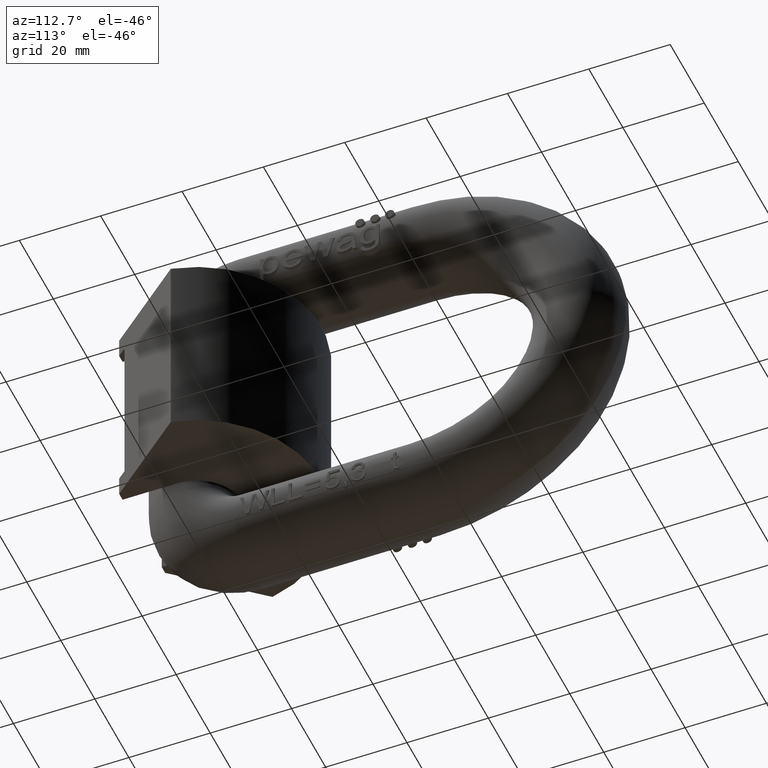
[diagram: clean part render]
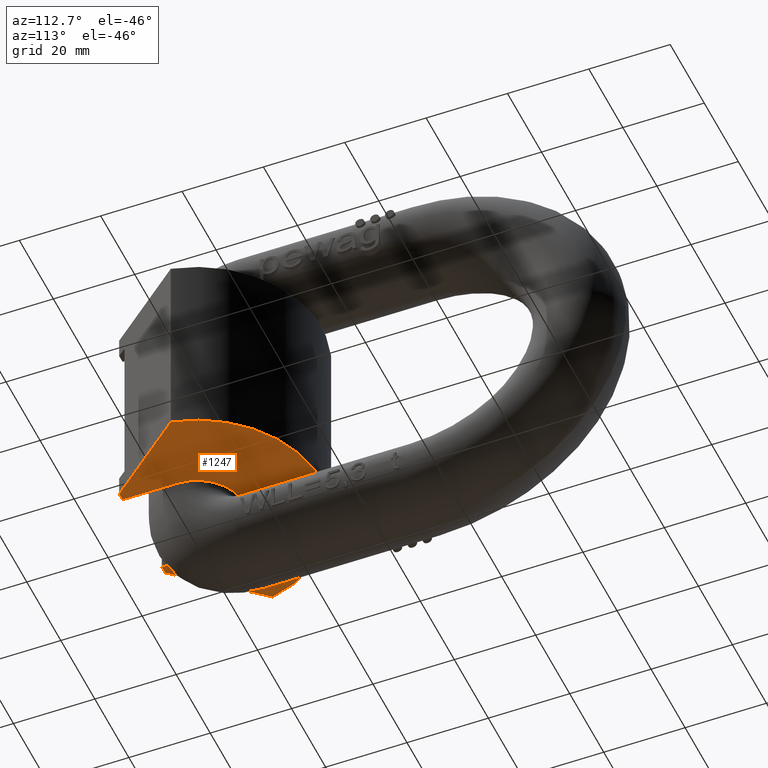
[diagram: same view with one face highlighted and labeled with its STEP entity id]
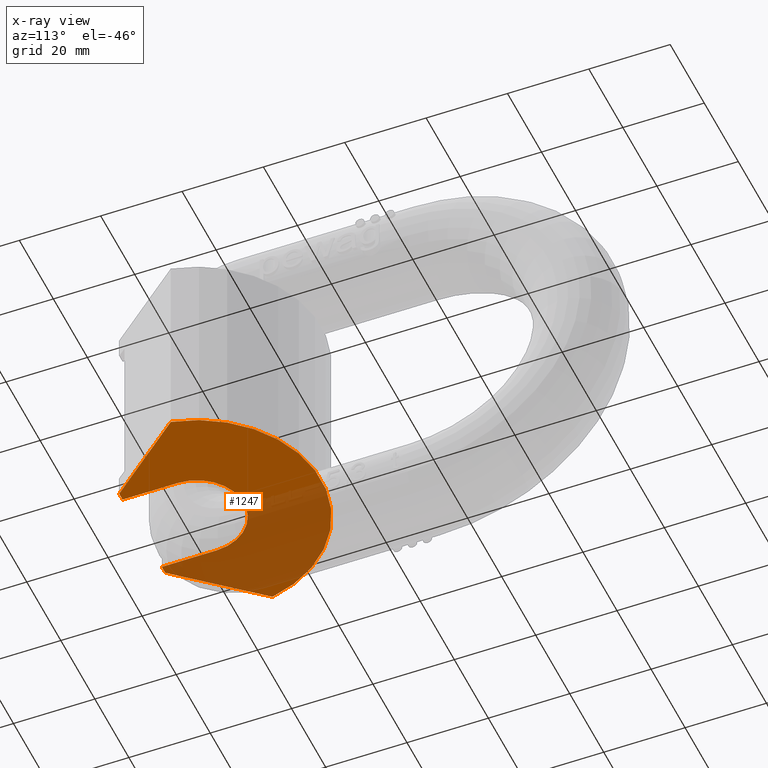
[diagram: x-ray of the same camera — body ghosted, the highlighted face saturated]
A machine part, auxiliary view. The second image highlights one B-rep face of the part: STEP entity #1247.
The next image is the same camera in x-ray: the body ghosted, the highlighted face saturated — about 47% of this face is hidden behind the body in this view.
In plain terms, the highlighted planar face has unit normal (0, 0, -1).
Its self-contained STEP definition (entity closure, byte-faithful):
#1030=PLANE('',#7597);
#1247=ADVANCED_FACE('',(#1674),#1030,.T.);
#1674=FACE_OUTER_BOUND('',#2062,.T.);
#2062=EDGE_LOOP('',(#2592,#2593,#2594,#2595,#2596,#2597,#2598,#2599));
#2523=CIRCLE('',#7592,30.5);
#2525=CIRCLE('',#7596,11.5);
#2592=ORIENTED_EDGE('',*,*,#5461,.F.);
#2593=ORIENTED_EDGE('',*,*,#5462,.T.);
#2594=ORIENTED_EDGE('',*,*,#5453,.F.);
#2595=ORIENTED_EDGE('',*,*,#5463,.T.);
#2596=ORIENTED_EDGE('',*,*,#5464,.F.);
#2597=ORIENTED_EDGE('',*,*,#5465,.F.);
#2598=ORIENTED_EDGE('',*,*,#5466,.F.);
#2599=ORIENTED_EDGE('',*,*,#5467,.F.);
#4729=VERTEX_POINT('',#9270);
#4731=VERTEX_POINT('',#9274);
#4738=VERTEX_POINT('',#9292);
#4739=VERTEX_POINT('',#9293);
#4740=VERTEX_POINT('',#9296);
#4741=VERTEX_POINT('',#9298);
#4742=VERTEX_POINT('',#9300);
#4743=VERTEX_POINT('',#9302);
#5453=EDGE_CURVE('',#4731,#4729,#2523,.T.);
#5461=EDGE_CURVE('',#4738,#4739,#6532,.T.);
#5462=EDGE_CURVE('',#4738,#4729,#6533,.T.);
#5463=EDGE_CURVE('',#4731,#4740,#6534,.T.);
#5464=EDGE_CURVE('',#4741,#4740,#6535,.T.);
#5465=EDGE_CURVE('',#4742,#4741,#6536,.T.);
#5466=EDGE_CURVE('',#4743,#4742,#2525,.T.);
#5467=EDGE_CURVE('',#4739,#4743,#6537,.T.);
#6532=LINE('',#9291,#6980);
#6533=LINE('',#9294,#6981);
#6534=LINE('',#9295,#6982);
#6535=LINE('',#9297,#6983);
#6536=LINE('',#9299,#6984);
#6537=LINE('',#9303,#6985);
#6980=VECTOR('',#7963,1.);
#6981=VECTOR('',#7964,1.);
#6982=VECTOR('',#7965,1.);
#6983=VECTOR('',#7966,1.);
#6984=VECTOR('',#7967,1.);
#6985=VECTOR('',#7970,1.);
#7592=AXIS2_PLACEMENT_3D('',#9275,#7949,#7950);
#7596=AXIS2_PLACEMENT_3D('',#9301,#7968,#7969);
#7597=AXIS2_PLACEMENT_3D('',#9304,#7971,#7972);
#7949=DIRECTION('',(0.,0.,1.));
#7950=DIRECTION('',(1.,0.,0.));
#7963=DIRECTION('',(1.,2.07594975058161E-32,0.));
#7964=DIRECTION('',(-0.64278760968654,0.766044443118978,0.));
#7965=DIRECTION('',(-0.64278760968654,-0.766044443118978,0.));
#7966=DIRECTION('',(1.,-2.07594975058161E-32,0.));
#7967=DIRECTION('',(1.28498035257541E-16,-1.,0.));
#7968=DIRECTION('',(0.,0.,-1.));
#7969=DIRECTION('',(1.,1.50845519650157E-16,0.));
#7970=DIRECTION('',(1.28498035257541E-16,1.,0.));
#7971=DIRECTION('',(0.,0.,-1.));
#7972=DIRECTION('',(-1.,0.,0.));
#9270=CARTESIAN_POINT('',(-29.8959687524467,19.5399546647908,-25.));
#9274=CARTESIAN_POINT('',(29.8959687524467,19.5399546647908,-25.));
#9275=CARTESIAN_POINT('',(0.,13.5,-25.));
#9291=CARTESIAN_POINT('',(-30.5,-3.94430452610506E-31,-25.));
#9292=CARTESIAN_POINT('',(-13.5,0.,-25.));
#9293=CARTESIAN_POINT('',(-11.5,0.,-25.));
#9294=CARTESIAN_POINT('',(-14.5695775320842,1.27467286641937,-25.));
#9295=CARTESIAN_POINT('',(14.5695775320842,1.27467286641937,-25.));
#9296=CARTESIAN_POINT('',(13.5,0.,-25.));
#9297=CARTESIAN_POINT('',(11.5,0.,-25.));
#9298=CARTESIAN_POINT('',(11.5,0.,-25.));
#9299=CARTESIAN_POINT('',(11.5,13.5,-25.));
#9300=CARTESIAN_POINT('',(11.5,13.5,-25.));
#9301=CARTESIAN_POINT('',(0.,13.5,-25.));
#9302=CARTESIAN_POINT('',(-11.5,13.5,-25.));
#9303=CARTESIAN_POINT('',(-11.5,0.,-25.));
#9304=CARTESIAN_POINT('',(0.,13.5,-25.));